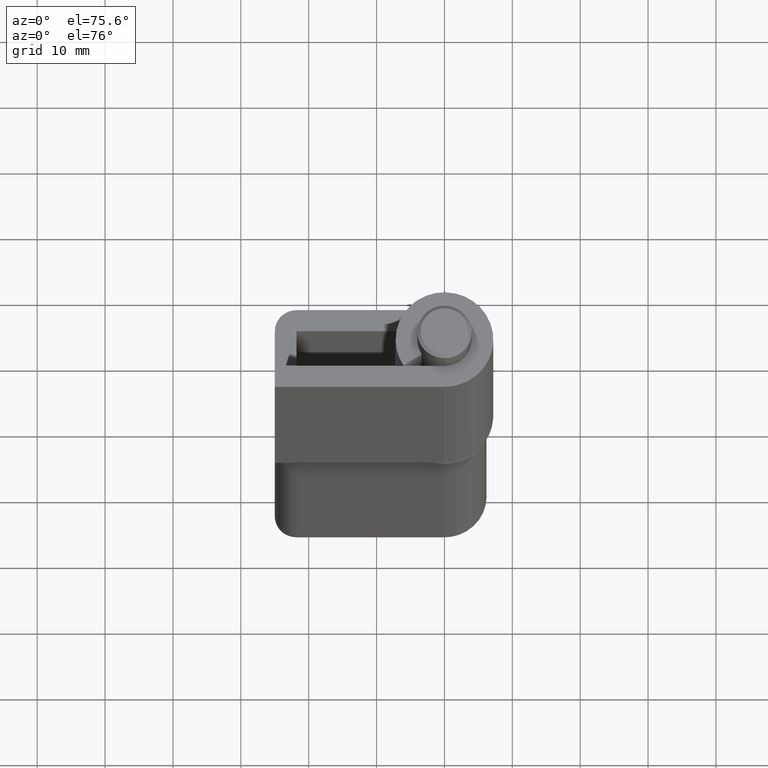
[diagram: clean part render]
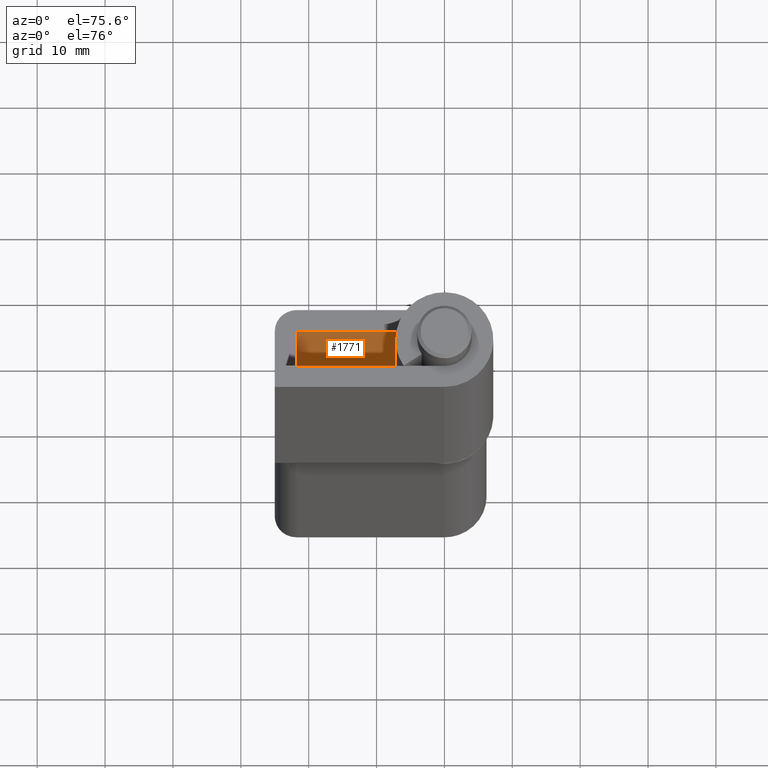
[diagram: same view with one face highlighted and labeled with its STEP entity id]
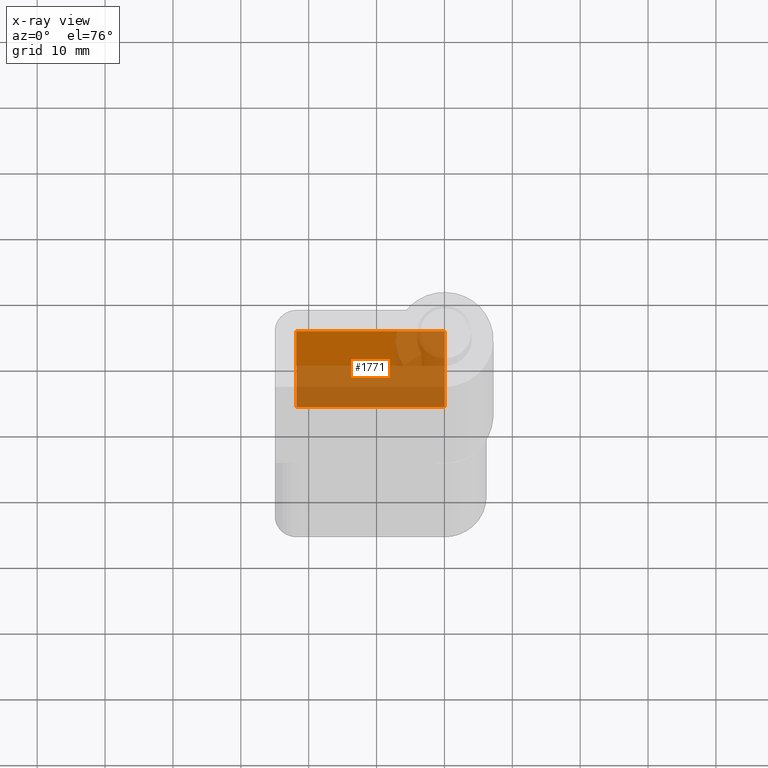
[diagram: x-ray of the same camera — body ghosted, the highlighted face saturated]
A machine part, auxiliary view. The second image highlights one B-rep face of the part: STEP entity #1771.
The next image is the same camera in x-ray: the body ghosted, the highlighted face saturated — about 70% of this face is hidden behind the body in this view.
In plain terms, the highlighted face is a freeform B-spline surface patch.
Its self-contained STEP definition (entity closure, byte-faithful):
#1275=CARTESIAN_POINT('',(-21.800003000000000,13.600002000000000,2.0));
#1276=VERTEX_POINT('',#1275);
#1389=CARTESIAN_POINT('',(0.0,13.600002000000000,2.0));
#1390=VERTEX_POINT('',#1389);
#1396=CARTESIAN_POINT('',(-21.800003000000000,13.600002000000000,2.0));
#1397=CARTESIAN_POINT('',(0.0,13.600002000000000,2.0));
#1398=QUASI_UNIFORM_CURVE('',1,(#1396,#1397),.UNSPECIFIED.,.F.,.U.);
#1399=EDGE_CURVE('',#1276,#1390,#1398,.T.);
#1411=CARTESIAN_POINT('',(-21.800003000000000,13.600002000000000,47.0));
#1412=VERTEX_POINT('',#1411);
#1418=CARTESIAN_POINT('',(0.0,13.600002000000000,47.0));
#1419=VERTEX_POINT('',#1418);
#1420=CARTESIAN_POINT('',(-21.800003000000000,13.600002000000000,47.0));
#1421=CARTESIAN_POINT('',(0.0,13.600002000000000,47.0));
#1422=QUASI_UNIFORM_CURVE('',1,(#1420,#1421),.UNSPECIFIED.,.F.,.U.);
#1423=EDGE_CURVE('',#1412,#1419,#1422,.T.);
#1748=CARTESIAN_POINT('',(0.0,13.600002000000000,47.0));
#1749=CARTESIAN_POINT('',(0.0,13.600002000000000,2.0));
#1750=QUASI_UNIFORM_CURVE('',1,(#1748,#1749),.UNSPECIFIED.,.F.,.U.);
#1751=EDGE_CURVE('',#1419,#1390,#1750,.T.);
#1756=CARTESIAN_POINT('',(-22.888913312240192,13.600002000000000,-0.247749912781268));
#1757=CARTESIAN_POINT('',(-22.888913312240192,13.600002000000000,49.247751119775337));
#1758=CARTESIAN_POINT('',(1.088910702054627,13.600002000000000,-0.247749912781268));
#1759=CARTESIAN_POINT('',(1.088910702054627,13.600002000000000,49.247751119775337));
#1760=B_SPLINE_SURFACE_WITH_KNOTS('',1,1,((#1756,#1758),(#1757,#1759)),.UNSPECIFIED.,.F.,.F.,.U.,(2,2),(2,2),(0.0,49.495501032556596),(0.0,23.977824014294821),.UNSPECIFIED.);
#1761=ORIENTED_EDGE('',*,*,#1399,.T.);
#1762=ORIENTED_EDGE('',*,*,#1751,.F.);
#1763=ORIENTED_EDGE('',*,*,#1423,.F.);
#1764=CARTESIAN_POINT('',(-21.800003000000000,13.600002000000000,47.0));
#1765=CARTESIAN_POINT('',(-21.800003000000000,13.600002000000000,2.0));
#1766=QUASI_UNIFORM_CURVE('',1,(#1764,#1765),.UNSPECIFIED.,.F.,.U.);
#1767=EDGE_CURVE('',#1412,#1276,#1766,.T.);
#1768=ORIENTED_EDGE('',*,*,#1767,.T.);
#1769=EDGE_LOOP('',(#1761,#1762,#1763,#1768));
#1770=FACE_OUTER_BOUND('',#1769,.T.);
#1771=ADVANCED_FACE('',(#1770),#1760,.F.);